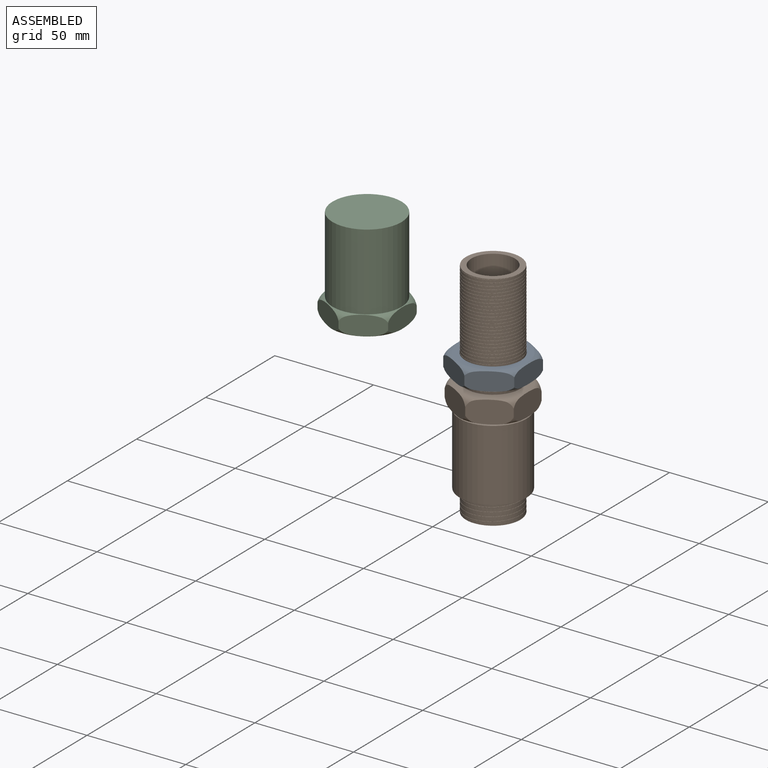
[diagram: assembled view]
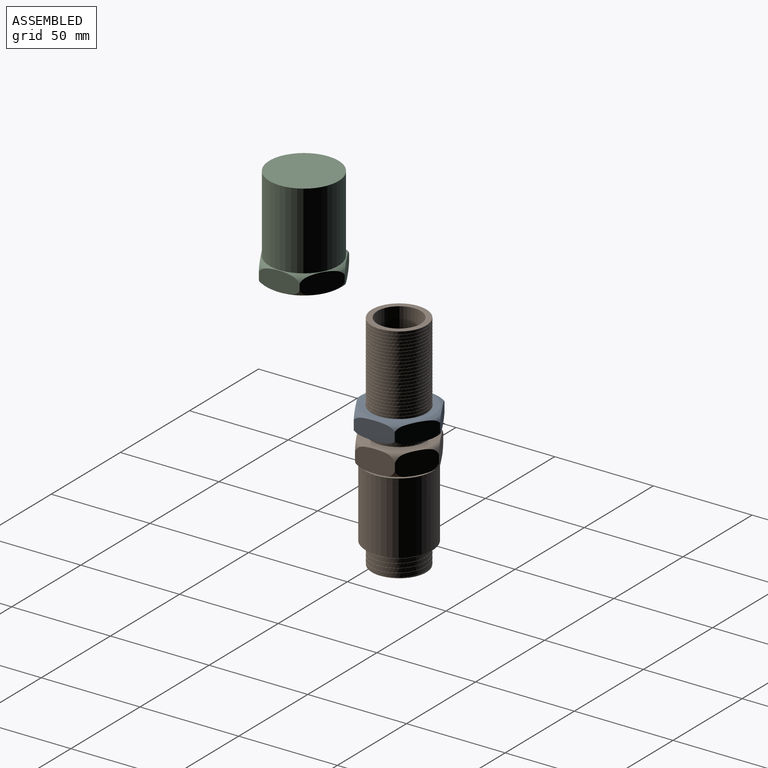
[diagram: assembled view, second angle]
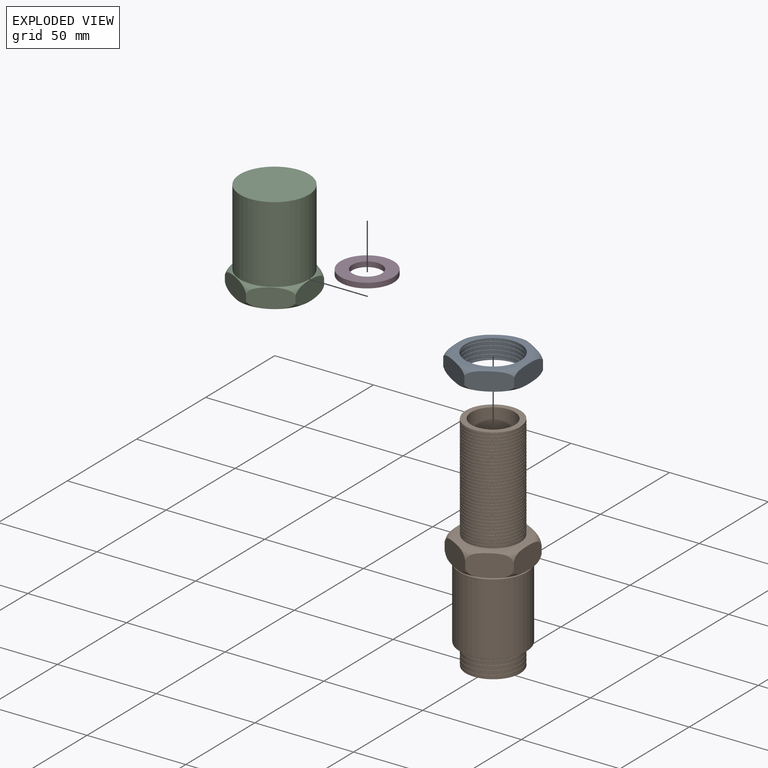
[diagram: exploded view]
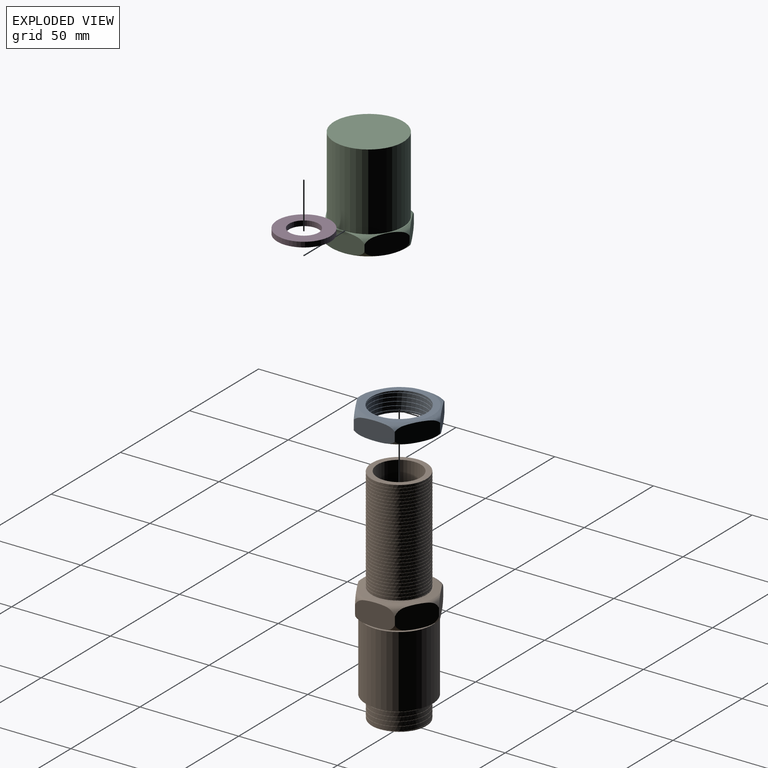
[diagram: exploded view, second angle]
ASSEMBLY  parts=4 mates=2
PART A: 16 faces, bbox 41.7x41.7x10.3 mm
  f0: plane 34.57x34.57mm, normal (0,0,-1), area 317.6mm2, adj f1,f3,f4,f6
  f1: cylinder r=14mm len=28mm, axis (0,0,-1), area 789.2mm2, adj f0,f2,f3,f4,f5
  f2: plane 34.49x34.49mm, normal (0,0,1), area 318.4mm2, adj f1,f8
  f3: bspline ~32.73x28.35mm, area 88mm2, adj f0,f1,f4,f5
  f4: bspline ~32.73x28.35mm, area 87.2mm2, adj f0,f1,f3,f5
  f5: plane 0.2x0.17mm, normal (0,-1,0), area 0mm2, adj f1,f3,f4
  f6: cone r=20.78mm half-angle=71.9deg, axis (0,0,-1), area 20.1mm2, adj f0,f7
  f7: revolved ~41.57x41.57mm, area 228.9mm2, adj f6,f10,f11,f12,f13,f14,f15
  f8: cone r=20.78mm half-angle=71.9deg, axis (0,0,1), area 20.1mm2, adj f2,f9
  f9: revolved ~41.57x41.57mm, area 228.9mm2, adj f8,f10,f11,f12,f13,f14,f15
  f10: plane 18x10.39mm, normal (-0.5,0.87,0), area 171.8mm2, adj f7,f9,f11,f15
  f11: plane 18x10.39mm, normal (0.5,0.87,0), area 171.8mm2, adj f7,f9,f10,f12
  f12: plane 20.78x9.29mm, normal (1,0,0), area 171.8mm2, adj f7,f9,f11,f13
  f13: plane 18x10.39mm, normal (0.5,-0.87,0), area 171.8mm2, adj f7,f9,f12,f14
  f14: plane 18x10.39mm, normal (-0.5,-0.87,0), area 171.8mm2, adj f7,f9,f13,f15
  f15: plane 20.78x9.29mm, normal (-1,0,0), area 171.8mm2, adj f7,f9,f10,f14
PART B: 32 faces, bbox 40.5x40.5x113 mm
  f0: cylinder r=11mm len=88mm, axis (0,0,-1), area 6077.8mm2, adj f3,f9,f27,f28,f29,f30
  f1: plane 27.6x27.6mm, normal (0,0,-1), area 218.2mm2, adj f5,f10
  f2: cylinder r=13.8mm len=53mm, axis (0,0,-1), area 5466mm2, adj f3,f4,f15,f16,f17
  f3: plane 27.6x27.6mm, normal (0,0,1), area 218.2mm2, adj f0,f2
  f4: plane 28.51x28.51mm, normal (0,0,1), area 38.3mm2, adj f2,f16,f17,f26
  f5: cylinder r=13.8mm len=27.6mm, axis (0,0,-1), area 910.9mm2, adj f1,f6,f12,f13,f14
  f6: plane 34.02x34.02mm, normal (0,0,-1), area 309.5mm2, adj f5,f7,f12,f13
  f7: cylinder r=17mm len=36.17mm, axis (0,0,-1), area 3863.7mm2, adj f6,f18
  f8: cylinder r=7.5mm len=15mm, axis (0,0,-1), area 235.6mm2, adj f9,f11
  f9: plane 22x22mm, normal (0,0,1), area 203.4mm2, adj f0,f8
  f10: cylinder r=11mm len=22mm, axis (0,0,-1), area 1382.3mm2, adj f1,f11
  f11: plane 22x22mm, normal (0,0,-1), area 203.4mm2, adj f8,f10
  f12: bspline ~32.07x27.77mm, area 43.2mm2, adj f5,f6,f13,f14
  f13: bspline ~32.07x27.77mm, area 43.4mm2, adj f5,f6,f12,f14
  f14: plane 0.1x0.09mm, normal (0,-1,0), area 0mm2, adj f5,f12,f13
  f15: plane 0.1x0.09mm, normal (0,1,0), area 0mm2, adj f2,f16,f17
  f16: bspline ~53.05x32.07mm, area 295.5mm2, adj f2,f4,f15,f17
  f17: bspline ~53.05x32.07mm, area 295.8mm2, adj f2,f4,f15,f16
  f18: cone r=20.21mm half-angle=83.2deg, axis (0,0,-1), area 273mm2, adj f7,f19
  f19: revolved ~40.41x40.41mm, area 460.2mm2, adj f18,f20,f21,f22,f23,f24,f25
  f20: plane 17.5x11.33mm, normal (-0.5,0.87,0), area 200.3mm2, adj f19,f21,f25,f26
  f21: plane 17.5x11.33mm, normal (0.5,0.87,0), area 200.3mm2, adj f19,f20,f22,f26
  f22: plane 20.21x11.33mm, normal (1,0,0), area 200.3mm2, adj f19,f21,f23,f26
  f23: plane 17.5x11.33mm, normal (0.5,-0.87,0), area 200.3mm2, adj f19,f22,f24,f26
  f24: plane 17.5x11.33mm, normal (-0.5,-0.87,0), area 200.3mm2, adj f19,f23,f25,f26
  f25: plane 20.21x11.33mm, normal (-1,0,0), area 200.3mm2, adj f19,f20,f24,f26
  f26: revolved ~40.41x40.41mm, area 460.2mm2, adj f4,f20,f21,f22,f23,f24,f25
  f27: plane 5.42x2mm, normal (-1,0,0), area 10.8mm2, adj f0,f28,f30,f31
  f28: plane 2.03x0.8mm, normal (0,0,-1), area 1.6mm2, adj f0,f27,f29,f31
  f29: plane 5.42x2.03mm, normal (1,0,0), area 11mm2, adj f0,f28,f30,f31
  f30: plane 2.03x0.8mm, normal (0,0,1), area 1.6mm2, adj f0,f27,f29,f31
  f31: plane 5.42x0.8mm, normal (0,-1,0), area 4.3mm2, adj f27,f28,f29,f30
PART C: 33 faces, bbox 41.3x41.3x48.8 mm
  f0: cylinder r=17.5mm len=38.8mm, axis (0,0,-1), area 4266.3mm2, adj f1,f2
  f1: plane 35x35mm, normal (0,0,1), area 962.1mm2, adj f0
  f2: plane 35.65x35.65mm, normal (0,0,1), area 35.9mm2, adj f0,f3
  f3: revolved ~41.34x41.34mm, area 144mm2, adj f2,f4,f5,f6,f7,f8,f9
  f4: plane 17.9x10.33mm, normal (-0.5,0.87,0), area 173.6mm2, adj f3,f5,f9,f10
  f5: plane 17.9x10.33mm, normal (0.5,0.87,0), area 173.6mm2, adj f3,f4,f6,f10
  f6: plane 20.67x9.91mm, normal (1,0,0), area 173.6mm2, adj f3,f5,f7,f10
  f7: plane 17.9x10.33mm, normal (0.5,-0.87,0), area 173.6mm2, adj f3,f6,f8,f10
  f8: plane 17.9x10.33mm, normal (-0.5,-0.87,0), area 173.6mm2, adj f3,f7,f9,f10
  f9: plane 20.67x9.91mm, normal (-1,0,0), area 173.6mm2, adj f3,f4,f8,f10
  f10: revolved ~41.34x41.34mm, area 144mm2, adj f4,f5,f6,f7,f8,f9,f32
  f11: plane 0.2x0.17mm, normal (0,1,0), area 0mm2, adj f12,f14,f17
  f12: bspline ~32.73x28.35mm, area 264.9mm2, adj f11,f13,f14,f16,f18,f19,f20,f21
  f13: plane 0.2x0.17mm, normal (0,-1,0), area 0mm2, adj f12,f14,f16
  f14: bspline ~32.73x28.35mm, area 265.5mm2, adj f11,f12,f13,f17,f18,f19,f20,f21
  f15: plane 28x28mm, normal (0,0,-1), area 615.8mm2, adj f16
  f16: cylinder r=14mm len=28mm, axis (0,0,-1), area 2243.1mm2, adj f12,f13,f15,f31
  f17: cylinder r=14mm len=28mm, axis (0,0,-1), area 61.6mm2, adj f11,f14,f18,f32
  f18: cylinder r=14mm len=28mm, axis (0,0,-1), area 105.6mm2, adj f12,f14,f17,f19
  f19: cylinder r=14mm len=28mm, axis (0,0,-1), area 105.6mm2, adj f12,f14,f18,f20
  f20: cylinder r=14mm len=28mm, axis (0,0,-1), area 105.6mm2, adj f12,f14,f19,f21
  f21: cylinder r=14mm len=28mm, axis (0,0,-1), area 105.6mm2, adj f12,f14,f20,f22
  f22: cylinder r=14mm len=28mm, axis (0,0,-1), area 105.6mm2, adj f12,f14,f21,f23
  f23: cylinder r=14mm len=28mm, axis (0,0,-1), area 105.5mm2, adj f12,f14,f22,f24
  f24: cylinder r=14mm len=28mm, axis (0,0,-1), area 105.5mm2, adj f12,f14,f23,f25
  f25: cylinder r=14mm len=28mm, axis (0,0,-1), area 105.5mm2, adj f12,f14,f24,f26
  f26: cylinder r=14mm len=28mm, axis (0,0,-1), area 105.5mm2, adj f12,f14,f25,f27
  f27: cylinder r=14mm len=28mm, axis (0,0,-1), area 105.5mm2, adj f12,f14,f26,f28
  f28: cylinder r=14mm len=28mm, axis (0,0,-1), area 105.6mm2, adj f12,f14,f27,f29
  f29: cylinder r=14mm len=28mm, axis (0,0,-1), area 105.6mm2, adj f12,f14,f28,f30
  f30: cylinder r=14mm len=28mm, axis (0,0,-1), area 105.6mm2, adj f12,f14,f29,f31
  f31: cylinder r=14mm len=28mm, axis (0,0,-1), area 105.6mm2, adj f12,f14,f16,f30
  f32: plane 35.65x35.65mm, normal (0,0,-1), area 382.2mm2, adj f10,f17
PART D: 4 faces, bbox 27x27x2.6 mm
  f0: cylinder r=7.5mm len=15mm, axis (0,0,-1), area 122.5mm2, adj f2,f3
  f1: cylinder r=13.5mm len=27mm, axis (0,0,-1), area 220.5mm2, adj f2,f3
  f2: plane 27x27mm, normal (0,0,1), area 395.8mm2, adj f0,f1
  f3: plane 27x27mm, normal (0,0,-1), area 395.8mm2, adj f0,f1
PLACE A rot(axis=(0,0,1),0deg) t=(-147.79,-52.17,0.68)mm
PLACE B t=(-147.79,-52.17,-62.32)mm fixed
PLACE C t=(-167.98,-114.51,44.61)mm
PLACE D t=(-167.98,-114.51,88.01)mm
MATE fastened D.f1 <-> C.f16  axis (0,0,1) through (-167.98,-114.51,90.61)mm
MATE cylindrical B.f2 <-> A.f1  axis (0,0,1) through (-147.79,-52.17,50.68)mm
